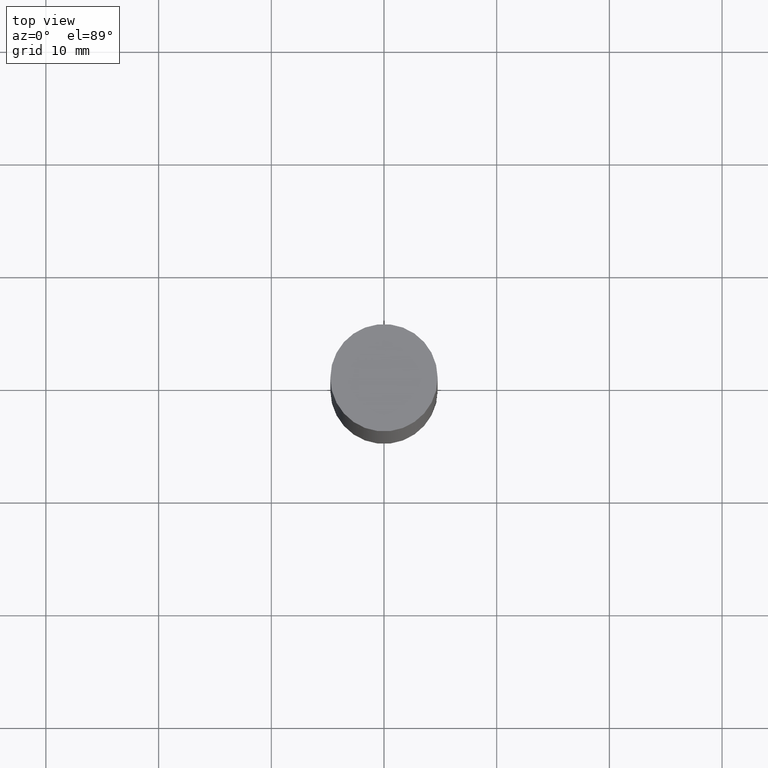
[diagram: clean part render]
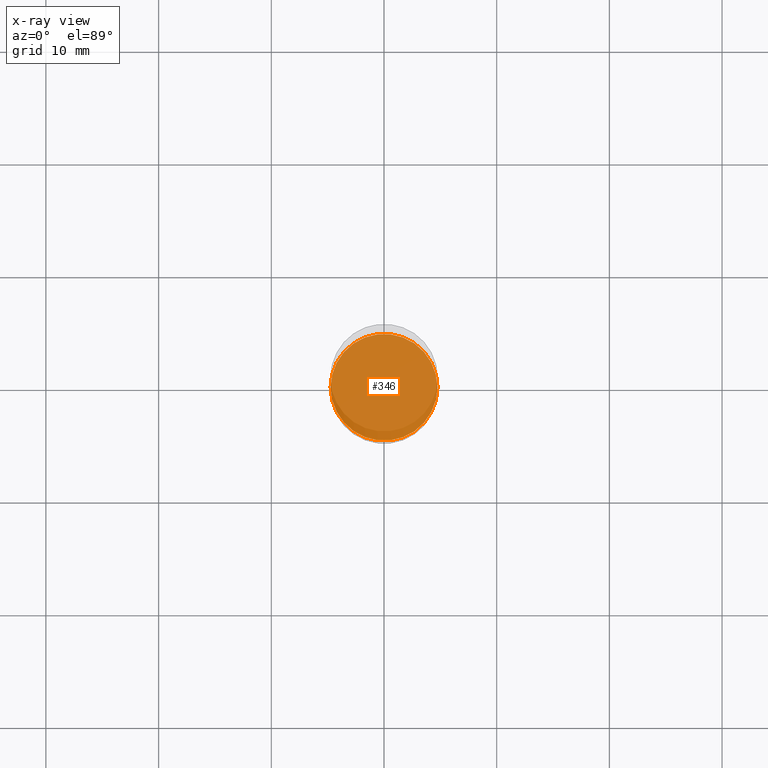
[diagram: x-ray — body ghosted, one internal face saturated and labeled with its STEP entity id]
A machine part, top view, then the same camera in x-ray: the body is ghosted and one INTERNAL B-rep face — a face not visible from any outside direction — is saturated and labeled: STEP entity #346.
In plain terms, the highlighted planar face has unit normal (-0, 0, 1).
Its self-contained STEP definition (entity closure, byte-faithful):
#20 = EDGE_CURVE ( 'NONE', #283, #179, #679, .T. ) ;
#21 = AXIS2_PLACEMENT_3D ( 'NONE', #363, #89, #145 ) ;
#50 = AXIS2_PLACEMENT_3D ( 'NONE', #213, #316, #101 ) ;
#64 = CARTESIAN_POINT ( 'NONE',  ( -0.1864999999999999714, -5.436030178137207592E-15, -1.937999999999999945 ) ) ;
#78 = CARTESIAN_POINT ( 'NONE',  ( 0.1864999999999999714, -8.068813374066505039E-15, -1.937999999999999945 ) ) ;
#89 = DIRECTION ( 'NONE',  ( -2.445468806185136597E-29, 3.491481338843145583E-15, 1.000000000000000000 ) ) ;
#101 = DIRECTION ( 'NONE',  ( 1.000000000000000000, -6.982962677686269077E-15, 0.000000000000000000 ) ) ;
#145 = DIRECTION ( 'NONE',  ( 1.000000000000000000, -6.982962677686269077E-15, 0.000000000000000000 ) ) ;
#156 = DIRECTION ( 'NONE',  ( 1.000000000000000000, -6.982962677686265922E-15, 4.876176775795935793E-29 ) ) ;
#178 = FACE_OUTER_BOUND ( 'NONE', #641, .T. ) ;
#179 = VERTEX_POINT ( 'NONE', #64 ) ;
#203 = CARTESIAN_POINT ( 'NONE',  ( 4.739318546386794397E-29, -6.766490834678016045E-15, -1.937999999999999945 ) ) ;
#213 = CARTESIAN_POINT ( 'NONE',  ( 4.739318546386794397E-29, -6.766490834678016045E-15, -1.937999999999999945 ) ) ;
#226 = EDGE_CURVE ( 'NONE', #179, #283, #550, .T. ) ;
#262 = DIRECTION ( 'NONE',  ( -2.438088387897960049E-29, 3.491481338843145188E-15, 1.000000000000000000 ) ) ;
#283 = VERTEX_POINT ( 'NONE', #78 ) ;
#316 = DIRECTION ( 'NONE',  ( -2.445468806185136597E-29, 3.491481338843145583E-15, 1.000000000000000000 ) ) ;
#346 = ADVANCED_FACE ( 'NONE', ( #178 ), #646, .F. ) ;
#363 = CARTESIAN_POINT ( 'NONE',  ( 4.739318546386794397E-29, -6.766490834678016045E-15, -1.937999999999999945 ) ) ;
#550 = CIRCLE ( 'NONE', #21, 0.1864999999999999714 ) ;
#591 = ORIENTED_EDGE ( 'NONE', *, *, #20, .F. ) ;
#601 = AXIS2_PLACEMENT_3D ( 'NONE', #203, #262, #156 ) ;
#606 = ORIENTED_EDGE ( 'NONE', *, *, #226, .F. ) ;
#641 = EDGE_LOOP ( 'NONE', ( #591, #606 ) ) ;
#646 = PLANE ( 'NONE',  #601 ) ;
#679 = CIRCLE ( 'NONE', #50, 0.1864999999999999714 ) ;